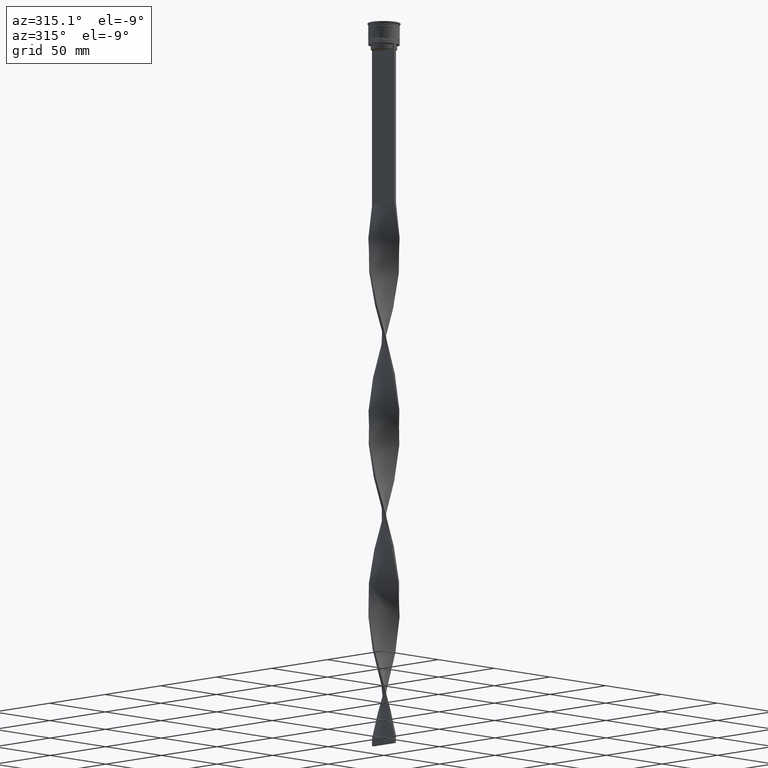
[diagram: clean part render]
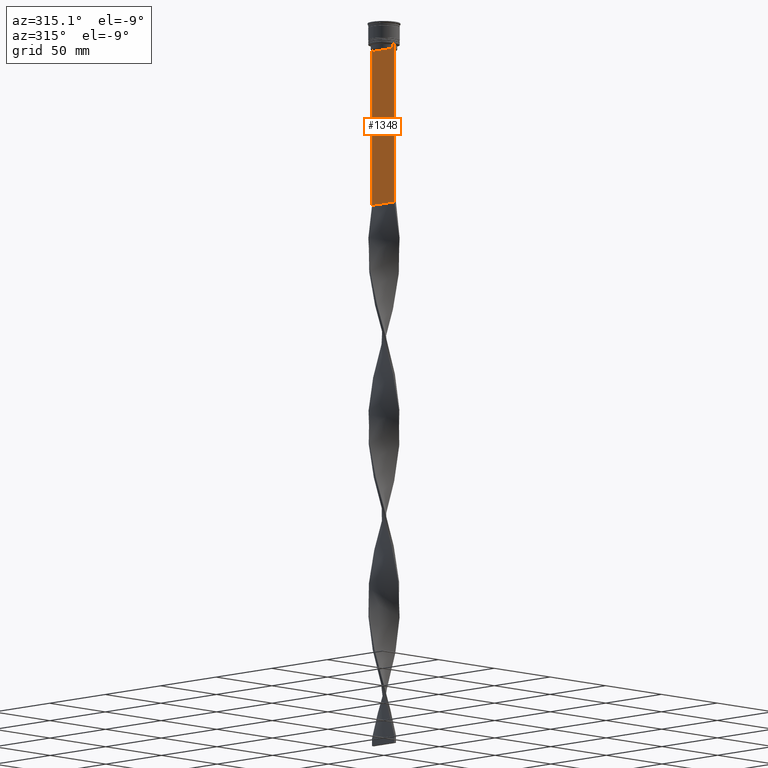
[diagram: same view with one face highlighted and labeled with its STEP entity id]
A machine part, auxiliary view. The second image highlights one B-rep face of the part: STEP entity #1348.
In plain terms, the highlighted planar face has unit normal (-1, 0, 0).
Its self-contained STEP definition (entity closure, byte-faithful):
#22 = ORIENTED_EDGE ( 'NONE', *, *, #4360, .F. ) ;
#28 = CARTESIAN_POINT ( 'NONE',  ( -0.7499999999999997780, 8.366450860430608927, -14.50000000000000000 ) ) ;
#48 = DIRECTION ( 'NONE',  ( 0.000000000000000000, 0.000000000000000000, -1.000000000000000000 ) ) ;
#159 = CARTESIAN_POINT ( 'NONE',  ( -0.7499999999999997780, -8.868342573446296839, -14.00000000000000178 ) ) ;
#172 = CARTESIAN_POINT ( 'NONE',  ( -0.7499999999999997780, -8.366450860430608927, -17.00000000000000000 ) ) ;
#175 = LINE ( 'NONE', #2854, #997 ) ;
#197 = DIRECTION ( 'NONE',  ( 0.000000000000000000, -1.000000000000000000, 0.000000000000000000 ) ) ;
#257 = LINE ( 'NONE', #1677, #1141 ) ;
#281 = EDGE_CURVE ( 'NONE', #1035, #3709, #2268, .T. ) ;
#334 = LINE ( 'NONE', #994, #2004 ) ;
#383 = EDGE_CURVE ( 'NONE', #2394, #2924, #3725, .T. ) ;
#394 = ORIENTED_EDGE ( 'NONE', *, *, #1909, .F. ) ;
#443 = CARTESIAN_POINT ( 'NONE',  ( -0.7499999999999997780, -8.868342573446296839, -14.00000000000000178 ) ) ;
#496 = LINE ( 'NONE', #3187, #1063 ) ;
#505 = ORIENTED_EDGE ( 'NONE', *, *, #578, .F. ) ;
#552 = AXIS2_PLACEMENT_3D ( 'NONE', #3807, #2125, #3828 ) ;
#578 = EDGE_CURVE ( 'NONE', #3853, #3590, #2117, .T. ) ;
#601 = ORIENTED_EDGE ( 'NONE', *, *, #767, .F. ) ;
#613 = LINE ( 'NONE', #3061, #3799 ) ;
#729 = CARTESIAN_POINT ( 'NONE',  ( -0.7499999999999997780, 9.999999999999998224, -14.00000000000000178 ) ) ;
#744 = CARTESIAN_POINT ( 'NONE',  ( -0.7499999999999997780, 8.533766897779926808, -14.33335221373273782 ) ) ;
#767 = EDGE_CURVE ( 'NONE', #4409, #3148, #1603, .T. ) ;
#775 = VECTOR ( 'NONE', #908, 1000.000000000000000 ) ;
#908 = DIRECTION ( 'NONE',  ( 0.000000000000000000, -1.000000000000000000, 0.000000000000000000 ) ) ;
#943 = EDGE_CURVE ( 'NONE', #3148, #3853, #1716, .T. ) ;
#994 = CARTESIAN_POINT ( 'NONE',  ( -0.7499999999999997780, 9.999999999999998224, 6.056171120131581098 ) ) ;
#997 = VECTOR ( 'NONE', #3575, 1000.000000000000000 ) ;
#1031 = VERTEX_POINT ( 'NONE', #729 ) ;
#1035 = VERTEX_POINT ( 'NONE', #2773 ) ;
#1063 = VECTOR ( 'NONE', #2855, 1000.000000000000000 ) ;
#1141 = VECTOR ( 'NONE', #1325, 1000.000000000000000 ) ;
#1157 = CARTESIAN_POINT ( 'NONE',  ( -0.7499999999999997780, -8.533766903463440912, -14.33335220807192201 ) ) ;
#1178 = CARTESIAN_POINT ( 'NONE',  ( -0.7499999999999997780, -8.701063080777123204, -14.16668447713511547 ) ) ;
#1222 = CARTESIAN_POINT ( 'NONE',  ( -0.7499999999999998890, -10.00000000000000533, -116.0000000000000000 ) ) ;
#1278 = CARTESIAN_POINT ( 'NONE',  ( -0.7499999999999997780, 9.999999999999998224, -116.0000000000000000 ) ) ;
#1325 = DIRECTION ( 'NONE',  ( 0.000000000000000000, -1.000000000000000000, 0.000000000000000000 ) ) ;
#1343 = CARTESIAN_POINT ( 'NONE',  ( -0.7499999999999997780, -9.871550030263740894, -14.00000000000000178 ) ) ;
#1345 = VECTOR ( 'NONE', #3081, 1000.000000000000000 ) ;
#1348 = ADVANCED_FACE ( 'NONE', ( #2460 ), #3397, .T. ) ;
#1419 = VECTOR ( 'NONE', #3363, 1000.000000000000000 ) ;
#1457 = ORIENTED_EDGE ( 'NONE', *, *, #281, .F. ) ;
#1466 = EDGE_CURVE ( 'NONE', #1911, #2394, #496, .T. ) ;
#1603 = LINE ( 'NONE', #2668, #3057 ) ;
#1677 = CARTESIAN_POINT ( 'NONE',  ( -0.7499999999999997780, -10.00000000000000533, -14.00000000000000178 ) ) ;
#1716 = LINE ( 'NONE', #3755, #1345 ) ;
#1858 = CARTESIAN_POINT ( 'NONE',  ( -0.7499999999999997780, 9.871550030263740894, -14.00000000000000178 ) ) ;
#1889 = CARTESIAN_POINT ( 'NONE',  ( -0.7499999999999997780, -10.00000000000000533, -14.00000000000000178 ) ) ;
#1909 = EDGE_CURVE ( 'NONE', #1031, #2581, #1994, .T. ) ;
#1911 = VERTEX_POINT ( 'NONE', #1343 ) ;
#1917 = VERTEX_POINT ( 'NONE', #1278 ) ;
#1957 = ORIENTED_EDGE ( 'NONE', *, *, #3157, .F. ) ;
#1994 = LINE ( 'NONE', #2017, #775 ) ;
#2004 = VECTOR ( 'NONE', #48, 1000.000000000000000 ) ;
#2017 = CARTESIAN_POINT ( 'NONE',  ( -0.7499999999999997780, -10.00000000000000533, -14.00000000000000178 ) ) ;
#2020 = ORIENTED_EDGE ( 'NONE', *, *, #383, .F. ) ;
#2117 = B_SPLINE_CURVE_WITH_KNOTS ( 'NONE', 3,
 ( #3531, #1157, #1178, #159 ),
 .UNSPECIFIED., .F., .F.,
 ( 4, 4 ),
 ( 0.03866293624047253963, 0.03937282246709321309 ),
 .UNSPECIFIED. ) ;
#2125 = DIRECTION ( 'NONE',  ( -1.000000000000000000, 0.000000000000000000, 0.000000000000000000 ) ) ;
#2268 = B_SPLINE_CURVE_WITH_KNOTS ( 'NONE', 3,
 ( #4134, #3826, #744, #28 ),
 .UNSPECIFIED., .F., .F.,
 ( 4, 4 ),
 ( 0.01512225952876174867, 0.01583070519299695222 ),
 .UNSPECIFIED. ) ;
#2314 = CARTESIAN_POINT ( 'NONE',  ( -0.7499999999999997780, -10.00000000000000533, 6.056171120131581098 ) ) ;
#2394 = VERTEX_POINT ( 'NONE', #3979 ) ;
#2460 = FACE_OUTER_BOUND ( 'NONE', #2945, .T. ) ;
#2471 = ORIENTED_EDGE ( 'NONE', *, *, #943, .F. ) ;
#2581 = VERTEX_POINT ( 'NONE', #1858 ) ;
#2616 = EDGE_CURVE ( 'NONE', #2924, #1917, #175, .T. ) ;
#2668 = CARTESIAN_POINT ( 'NONE',  ( -0.7499999999999997780, 8.400000000000003908, -17.00000000000000000 ) ) ;
#2690 = CARTESIAN_POINT ( 'NONE',  ( -0.7499999999999997780, 8.366450860430608927, -17.00000000000000000 ) ) ;
#2773 = CARTESIAN_POINT ( 'NONE',  ( -0.7499999999999997780, 8.868342573446296839, -14.00000000000000178 ) ) ;
#2854 = CARTESIAN_POINT ( 'NONE',  ( -0.7499999999999997780, -10.00000000000000533, -116.0000000000000000 ) ) ;
#2855 = DIRECTION ( 'NONE',  ( 0.000000000000000000, -1.000000000000000000, 0.000000000000000000 ) ) ;
#2924 = VERTEX_POINT ( 'NONE', #1222 ) ;
#2945 = EDGE_LOOP ( 'NONE', ( #1457, #1957, #394, #2978, #4395, #2020, #3778, #22, #505, #2471, #601, #4025 ) ) ;
#2978 = ORIENTED_EDGE ( 'NONE', *, *, #3042, .T. ) ;
#2998 = CARTESIAN_POINT ( 'NONE',  ( -0.7499999999999997780, -8.366450860430608927, -14.50000000000000000 ) ) ;
#3038 = DIRECTION ( 'NONE',  ( 0.000000000000000000, 0.000000000000000000, -1.000000000000000000 ) ) ;
#3042 = EDGE_CURVE ( 'NONE', #1031, #1917, #334, .T. ) ;
#3057 = VECTOR ( 'NONE', #3374, 1000.000000000000000 ) ;
#3061 = CARTESIAN_POINT ( 'NONE',  ( -0.7499999999999997780, 8.366450860430608927, 0.000000000000000000 ) ) ;
#3081 = DIRECTION ( 'NONE',  ( -0.000000000000000000, -0.000000000000000000, 1.000000000000000000 ) ) ;
#3148 = VERTEX_POINT ( 'NONE', #172 ) ;
#3157 = EDGE_CURVE ( 'NONE', #2581, #1035, #3593, .T. ) ;
#3187 = CARTESIAN_POINT ( 'NONE',  ( -0.7499999999999997780, -10.00000000000000533, -14.00000000000000178 ) ) ;
#3363 = DIRECTION ( 'NONE',  ( 0.000000000000000000, 0.000000000000000000, -1.000000000000000000 ) ) ;
#3374 = DIRECTION ( 'NONE',  ( 0.000000000000000000, -1.000000000000000000, 0.000000000000000000 ) ) ;
#3397 = PLANE ( 'NONE',  #552 ) ;
#3531 = CARTESIAN_POINT ( 'NONE',  ( -0.7499999999999997780, -8.366450860430608927, -14.50000000000000000 ) ) ;
#3575 = DIRECTION ( 'NONE',  ( 0.000000000000000000, 1.000000000000000000, 0.000000000000000000 ) ) ;
#3590 = VERTEX_POINT ( 'NONE', #443 ) ;
#3593 = LINE ( 'NONE', #1889, #3726 ) ;
#3709 = VERTEX_POINT ( 'NONE', #4233 ) ;
#3725 = LINE ( 'NONE', #2314, #1419 ) ;
#3726 = VECTOR ( 'NONE', #197, 1000.000000000000000 ) ;
#3755 = CARTESIAN_POINT ( 'NONE',  ( -0.7499999999999997780, -8.366450860430608927, 0.000000000000000000 ) ) ;
#3775 = EDGE_CURVE ( 'NONE', #3709, #4409, #613, .T. ) ;
#3778 = ORIENTED_EDGE ( 'NONE', *, *, #1466, .F. ) ;
#3799 = VECTOR ( 'NONE', #3038, 1000.000000000000000 ) ;
#3807 = CARTESIAN_POINT ( 'NONE',  ( -0.7499999999999997780, -10.00000000000000533, 6.056171120131581098 ) ) ;
#3826 = CARTESIAN_POINT ( 'NONE',  ( -0.7499999999999997780, 8.701063075415252257, -14.16668448247791723 ) ) ;
#3828 = DIRECTION ( 'NONE',  ( 0.000000000000000000, 0.000000000000000000, 1.000000000000000000 ) ) ;
#3853 = VERTEX_POINT ( 'NONE', #2998 ) ;
#3979 = CARTESIAN_POINT ( 'NONE',  ( -0.7499999999999997780, -10.00000000000000533, -14.00000000000000178 ) ) ;
#4025 = ORIENTED_EDGE ( 'NONE', *, *, #3775, .F. ) ;
#4134 = CARTESIAN_POINT ( 'NONE',  ( -0.7499999999999997780, 8.868342573446296839, -14.00000000000000178 ) ) ;
#4233 = CARTESIAN_POINT ( 'NONE',  ( -0.7499999999999997780, 8.366450860430608927, -14.50000000000000000 ) ) ;
#4360 = EDGE_CURVE ( 'NONE', #3590, #1911, #257, .T. ) ;
#4395 = ORIENTED_EDGE ( 'NONE', *, *, #2616, .F. ) ;
#4409 = VERTEX_POINT ( 'NONE', #2690 ) ;